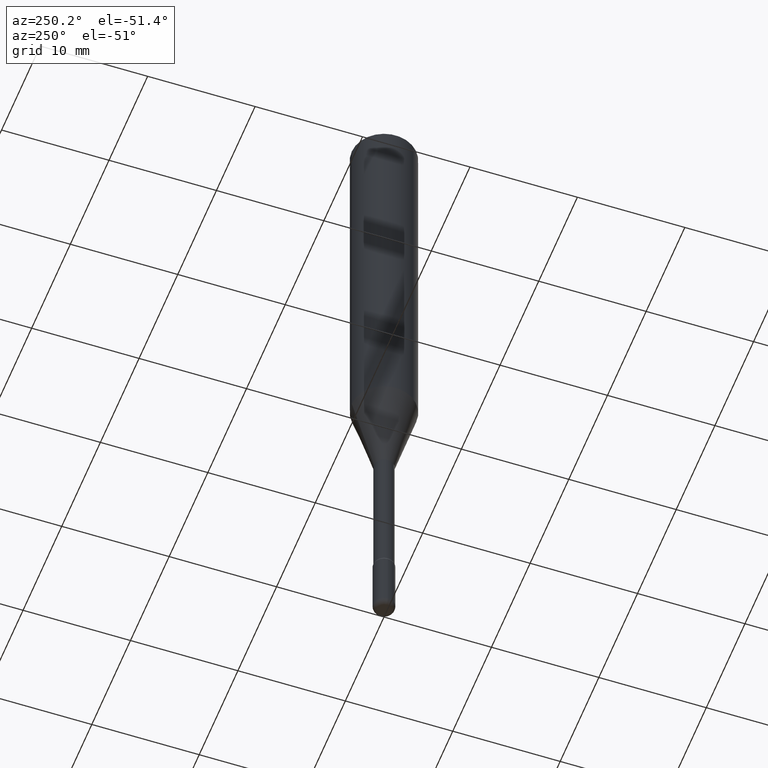
[diagram: clean part render]
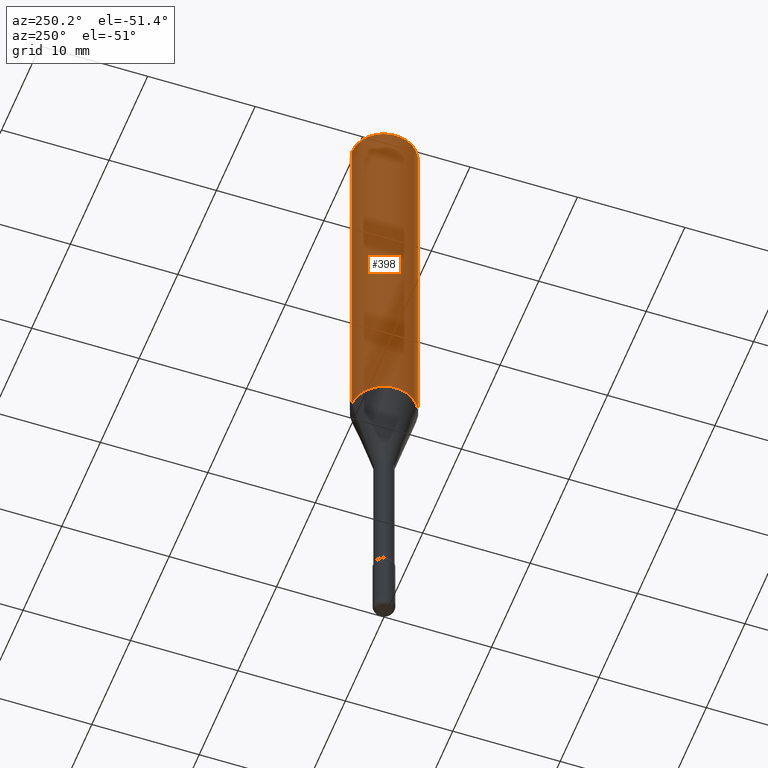
[diagram: same view with one face highlighted and labeled with its STEP entity id]
A machine part, auxiliary view. The second image highlights one B-rep face of the part: STEP entity #398.
In plain terms, the highlighted cylindrical surface (edge-blend (fillet) strip) has radius 2.9997 mm, axis along (-0, 0, 1).
Its self-contained STEP definition (entity closure, byte-faithful):
#34 = DIRECTION ( 'NONE',  ( -6.982962677686265922E-15, -1.000000000000000000, 3.491594488197586527E-15 ) ) ;
#70 = VERTEX_POINT ( 'NONE', #342 ) ;
#76 = FACE_OUTER_BOUND ( 'NONE', #326, .T. ) ;
#95 = VECTOR ( 'NONE', #364, 39.37007874015748143 ) ;
#121 = DIRECTION ( 'NONE',  ( -2.445389794413230210E-29, 3.491594488197586133E-15, 1.000000000000000000 ) ) ;
#122 = DIRECTION ( 'NONE',  ( -2.445389794413230210E-29, 3.491594488197586527E-15, 1.000000000000000000 ) ) ;
#124 = EDGE_CURVE ( 'NONE', #546, #140, #505, .T. ) ;
#134 = CARTESIAN_POINT ( 'NONE',  ( 3.668084691619852076E-31, -5.237391732296389553E-17, -0.01500000000000002720 ) ) ;
#140 = VERTEX_POINT ( 'NONE', #478 ) ;
#148 = CARTESIAN_POINT ( 'NONE',  ( 8.391509709326781971E-16, 0.1180999999999999966, 6.571608983511112252E-17 ) ) ;
#175 = EDGE_CURVE ( 'NONE', #292, #140, #497, .T. ) ;
#178 = CARTESIAN_POINT ( 'NONE',  ( 3.447830094494486299E-29, -4.922906189304403806E-15, -1.409930679506165019 ) ) ;
#189 = LINE ( 'NONE', #148, #194 ) ;
#194 = VECTOR ( 'NONE', #121, 39.37007874015748143 ) ;
#234 = CARTESIAN_POINT ( 'NONE',  ( -8.246878922347136513E-16, -0.1181000000000049094, -1.409930679506164797 ) ) ;
#245 = AXIS2_PLACEMENT_3D ( 'NONE', #178, #479, #303 ) ;
#292 = VERTEX_POINT ( 'NONE', #234 ) ;
#296 = DIRECTION ( 'NONE',  ( -6.982962677686265922E-15, -1.000000000000000000, 3.487819265831411744E-15 ) ) ;
#303 = DIRECTION ( 'NONE',  ( -6.982962677686265922E-15, -1.000000000000000000, 4.626330217890369336E-15 ) ) ;
#324 = CARTESIAN_POINT ( 'NONE',  ( -8.246878922347479668E-16, -0.1180999999999999966, 8.904307079473809916E-16 ) ) ;
#326 = EDGE_LOOP ( 'NONE', ( #358, #347, #428, #369 ) ) ;
#340 = AXIS2_PLACEMENT_3D ( 'NONE', #566, #343, #34 ) ;
#342 = CARTESIAN_POINT ( 'NONE',  ( 8.391509709327121181E-16, 0.1180999999999950423, -1.409930679506165685 ) ) ;
#343 = DIRECTION ( 'NONE',  ( -2.445389794413230210E-29, 3.491594488197586527E-15, 1.000000000000000000 ) ) ;
#347 = ORIENTED_EDGE ( 'NONE', *, *, #530, .T. ) ;
#350 = CARTESIAN_POINT ( 'NONE',  ( 8.391509709327129070E-16, 0.1180999999999999411, -0.01500000000000044006 ) ) ;
#358 = ORIENTED_EDGE ( 'NONE', *, *, #413, .F. ) ;
#364 = DIRECTION ( 'NONE',  ( -2.445389794413230210E-29, 3.491594488197586133E-15, 1.000000000000000000 ) ) ;
#369 = ORIENTED_EDGE ( 'NONE', *, *, #124, .F. ) ;
#388 = CIRCLE ( 'NONE', #245, 0.1180999999999999966 ) ;
#398 = ADVANCED_FACE ( 'NONE', ( #76 ), #429, .T. ) ;
#413 = EDGE_CURVE ( 'NONE', #70, #546, #189, .T. ) ;
#428 = ORIENTED_EDGE ( 'NONE', *, *, #175, .T. ) ;
#429 = CYLINDRICAL_SURFACE ( 'NONE', #340, 0.1180999999999999966 ) ;
#478 = CARTESIAN_POINT ( 'NONE',  ( -8.246878922347475723E-16, -0.1181000000000000522, -0.01499999999999961607 ) ) ;
#479 = DIRECTION ( 'NONE',  ( -2.445389794413230210E-29, 3.491594488197586527E-15, 1.000000000000000000 ) ) ;
#497 = LINE ( 'NONE', #324, #95 ) ;
#505 = CIRCLE ( 'NONE', #570, 0.1180999999999999966 ) ;
#530 = EDGE_CURVE ( 'NONE', #70, #292, #388, .T. ) ;
#546 = VERTEX_POINT ( 'NONE', #350 ) ;
#566 = CARTESIAN_POINT ( 'NONE',  ( -1.169113584055446105E-44, 1.669184350826100908E-30, 4.780733988912460139E-16 ) ) ;
#570 = AXIS2_PLACEMENT_3D ( 'NONE', #134, #122, #296 ) ;